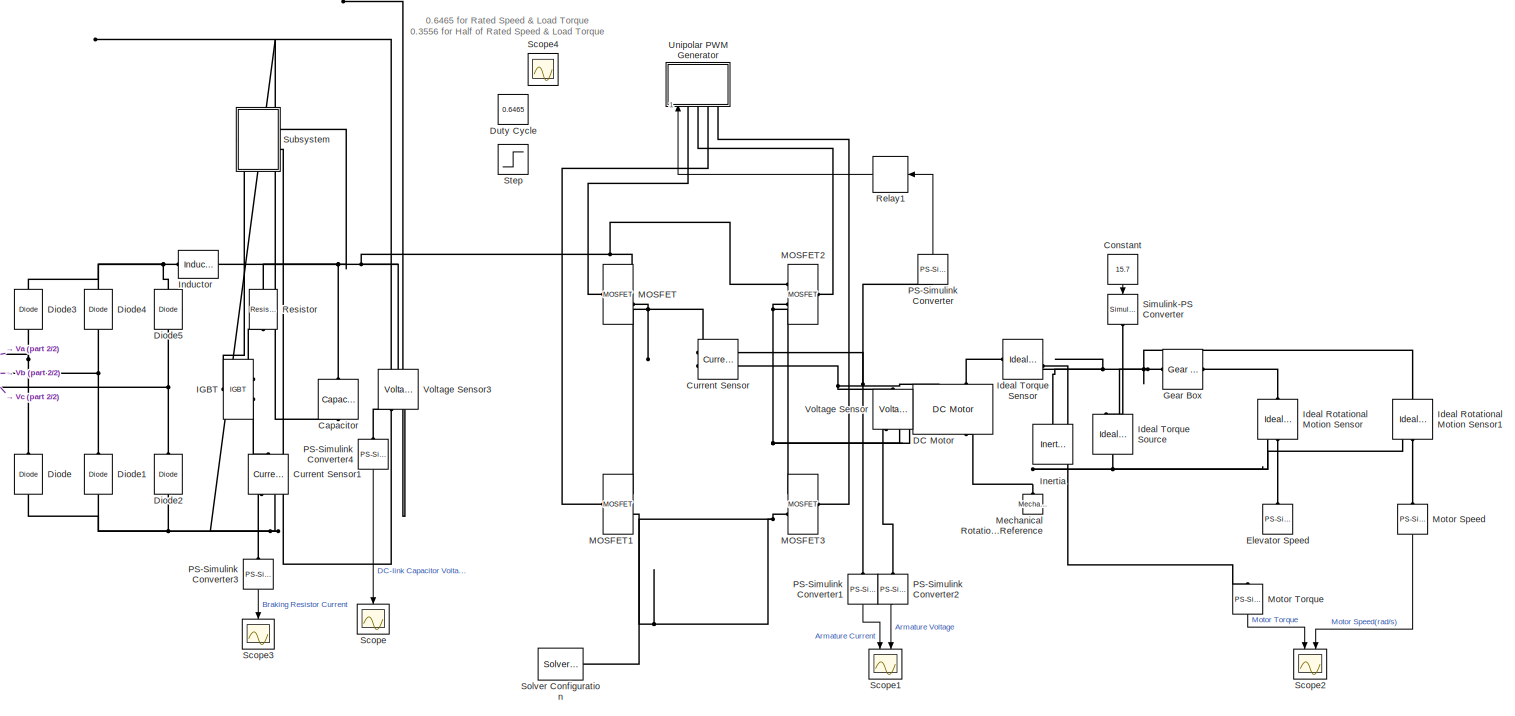
[diagram: root canvas - part 1/2, most of the canvas]
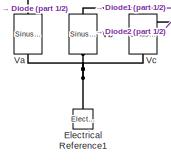
[diagram: root canvas - part 2/2, middle left region]
MODEL slx_2dd2f3dbb460
KIND model
CONFIG AbsTol = auto
CONFIG FixedStep = auto
CONFIG MaxStep = auto
CONFIG MinStep = auto
CONFIG RelTol = 1e-3
CONFIG SampleTimeConstraint = Unconstrained
CONFIG Solver = VariableStepAuto
CONFIG SolverMode = Auto
CONFIG SolverName = VariableStepAuto
CONFIG StartTime = 0.0
CONFIG StopTime = 2
BLOCK [Reference] Capacitor  REF=elec_lib/Passive Devices/Capacitor
  Ports = [0, 0, 0, 0, 0, 1, 1]
  SourceBlock = elec_lib/Passive Devices/Capacitor
  SourceType = Capacitor
BLOCK [Constant] Constant
  Value = 15.7
BLOCK [Reference] Current Sensor  REF=fl_lib/Electrical/Electrical Sensors/Current Sensor
  Ports = [0, 0, 0, 0, 0, 1, 2]
  SourceBlock = fl_lib/Electrical/Electrical Sensors/Current Sensor
  SourceType = Current Sensor
BLOCK [Reference] Current Sensor1  REF=fl_lib/Electrical/Electrical Sensors/Current Sensor
  Ports = [0, 0, 0, 0, 0, 1, 2]
  SourceBlock = fl_lib/Electrical/Electrical Sensors/Current Sensor
  SourceType = Current Sensor
BLOCK [Reference] DC Motor  REF=elec_lib/Actuators & Drivers/Rotational Actuators/DC Motor
  Ports = [0, 0, 0, 0, 0, 2, 2]
  SourceBlock = elec_lib/Actuators & Drivers/Rotational Actuators/DC Motor
  SourceType = DC Motor
BLOCK [Reference] Diode  REF=elec_lib/Semiconductor
Devices/Diode
  Ports = [0, 0, 0, 0, 0, 1, 1]
  SourceBlock = elec_lib/Semiconductor\nDevices/Diode
  SourceType = Diode
BLOCK [Reference] Diode1  REF=elec_lib/Semiconductor
Devices/Diode
  Ports = [0, 0, 0, 0, 0, 1, 1]
  SourceBlock = elec_lib/Semiconductor\nDevices/Diode
  SourceType = Diode
BLOCK [Reference] Diode2  REF=elec_lib/Semiconductor
Devices/Diode
  Ports = [0, 0, 0, 0, 0, 1, 1]
  SourceBlock = elec_lib/Semiconductor\nDevices/Diode
  SourceType = Diode
BLOCK [Reference] Diode3  REF=elec_lib/Semiconductor
Devices/Diode
  Ports = [0, 0, 0, 0, 0, 1, 1]
  SourceBlock = elec_lib/Semiconductor\nDevices/Diode
  SourceType = Diode
BLOCK [Reference] Diode4  REF=elec_lib/Semiconductor
Devices/Diode
  Ports = [0, 0, 0, 0, 0, 1, 1]
  SourceBlock = elec_lib/Semiconductor\nDevices/Diode
  SourceType = Diode
BLOCK [Reference] Diode5  REF=elec_lib/Semiconductor
Devices/Diode
  Ports = [0, 0, 0, 0, 0, 1, 1]
  SourceBlock = elec_lib/Semiconductor\nDevices/Diode
  SourceType = Diode
BLOCK [Constant] Duty Cycle
  Value = 0.6465
BLOCK [Reference] Electrical Reference1  REF=fl_lib/Electrical/Electrical Elements/Electrical Reference
  Ports = [0, 0, 0, 0, 0, 1]
  SourceBlock = fl_lib/Electrical/Electrical Elements/Electrical Reference
  SourceType = Electrical Reference
BLOCK [Reference] Elevator Speed  REF=nesl_utility/PS-Simulink
Converter
  Ports = [0, 1, 0, 0, 0, 1]
  SourceBlock = nesl_utility/PS-Simulink\nConverter
  SourceType = PS-Simulink\nConverter
BLOCK [Reference] Gear Box  REF=fl_lib/Mechanical/Mechanisms/Gear Box
  Ports = [0, 0, 0, 0, 0, 1, 1]
  SourceBlock = fl_lib/Mechanical/Mechanisms/Gear Box
  SourceType = Gear Box
BLOCK [Reference] IGBT  REF=pe_lib/Semiconductors/Fundamental
Components/IGBT
  Ports = [0, 0, 0, 0, 0, 1, 2]
  SourceBlock = pe_lib/Semiconductors/Fundamental\nComponents/IGBT
  SourceType = IGBT
BLOCK [Reference] Ideal Rotational Motion Sensor  REF=fl_lib/Mechanical/Mechanical Sensors/Ideal Rotational
Motion Sensor
  Ports = [0, 0, 0, 0, 0, 1, 3]
  SourceBlock = fl_lib/Mechanical/Mechanical Sensors/Ideal Rotational\nMotion Sensor
  SourceType = Ideal Rotational\nMotion Sensor
BLOCK [Reference] Ideal Rotational Motion Sensor1  REF=fl_lib/Mechanical/Mechanical Sensors/Ideal Rotational
Motion Sensor
  Ports = [0, 0, 0, 0, 0, 1, 3]
  SourceBlock = fl_lib/Mechanical/Mechanical Sensors/Ideal Rotational\nMotion Sensor
  SourceType = Ideal Rotational\nMotion Sensor
BLOCK [Reference] Ideal Torque Sensor  REF=fl_lib/Mechanical/Mechanical Sensors/Ideal Torque Sensor
  Ports = [0, 0, 0, 0, 0, 1, 2]
  SourceBlock = fl_lib/Mechanical/Mechanical Sensors/Ideal Torque Sensor
  SourceType = Ideal Torque Sensor
BLOCK [Reference] Ideal Torque Source  REF=fl_lib/Mechanical/Mechanical Sources/Ideal Torque Source
  Ports = [0, 0, 0, 0, 0, 1, 2]
  SourceBlock = fl_lib/Mechanical/Mechanical Sources/Ideal Torque Source
  SourceType = Ideal Torque Source
BLOCK [Reference] Inductor  REF=elec_lib/Passive Devices/Inductor
  Ports = [0, 0, 0, 0, 0, 1, 1]
  SourceBlock = elec_lib/Passive Devices/Inductor
  SourceType = Inductor
BLOCK [Reference] Inertia  REF=fl_lib/Mechanical/Rotational Elements/Inertia
  Ports = [0, 0, 0, 0, 0, 1]
  SourceBlock = fl_lib/Mechanical/Rotational Elements/Inertia
  SourceType = Inertia
BLOCK [Reference] MOSFET  REF=pe_lib/Semiconductors/Fundamental
Components/MOSFET
  Ports = [0, 0, 0, 0, 0, 1, 2]
  SourceBlock = pe_lib/Semiconductors/Fundamental\nComponents/MOSFET
  SourceType = MOSFET
BLOCK [Reference] MOSFET1  REF=pe_lib/Semiconductors/Fundamental
Components/MOSFET
  Ports = [0, 0, 0, 0, 0, 1, 2]
  SourceBlock = pe_lib/Semiconductors/Fundamental\nComponents/MOSFET
  SourceType = MOSFET
BLOCK [Reference] MOSFET2  REF=pe_lib/Semiconductors/Fundamental
Components/MOSFET
  Ports = [0, 0, 0, 0, 0, 1, 2]
  SourceBlock = pe_lib/Semiconductors/Fundamental\nComponents/MOSFET
  SourceType = MOSFET
BLOCK [Reference] MOSFET3  REF=pe_lib/Semiconductors/Fundamental
Components/MOSFET
  Ports = [0, 0, 0, 0, 0, 1, 2]
  SourceBlock = pe_lib/Semiconductors/Fundamental\nComponents/MOSFET
  SourceType = MOSFET
BLOCK [Reference] Mechanical Rotational Reference  REF=fl_lib/Mechanical/Rotational Elements/Mechanical
Rotational Reference
  Ports = [0, 0, 0, 0, 0, 1]
  SourceBlock = fl_lib/Mechanical/Rotational Elements/Mechanical\nRotational Reference
  SourceType = Mechanical\nRotational Reference
BLOCK [Reference] Motor Speed  REF=nesl_utility/PS-Simulink
Converter
  Ports = [0, 1, 0, 0, 0, 1]
  SourceBlock = nesl_utility/PS-Simulink\nConverter
  SourceType = PS-Simulink\nConverter
BLOCK [Reference] Motor Torque  REF=nesl_utility/PS-Simulink
Converter
  Ports = [0, 1, 0, 0, 0, 1]
  SourceBlock = nesl_utility/PS-Simulink\nConverter
  SourceType = PS-Simulink\nConverter
BLOCK [Reference] PS-Simulink Converter  REF=nesl_utility/PS-Simulink
Converter
  Ports = [0, 1, 0, 0, 0, 1]
  SourceBlock = nesl_utility/PS-Simulink\nConverter
  SourceType = PS-Simulink\nConverter
BLOCK [Reference] PS-Simulink Converter1  REF=nesl_utility/PS-Simulink
Converter
  Ports = [0, 1, 0, 0, 0, 1]
  SourceBlock = nesl_utility/PS-Simulink\nConverter
  SourceType = PS-Simulink\nConverter
BLOCK [Reference] PS-Simulink Converter2  REF=nesl_utility/PS-Simulink
Converter
  Ports = [0, 1, 0, 0, 0, 1]
  SourceBlock = nesl_utility/PS-Simulink\nConverter
  SourceType = PS-Simulink\nConverter
BLOCK [Reference] PS-Simulink Converter3  REF=nesl_utility/PS-Simulink
Converter
  Ports = [0, 1, 0, 0, 0, 1]
  SourceBlock = nesl_utility/PS-Simulink\nConverter
  SourceType = PS-Simulink\nConverter
BLOCK [Reference] PS-Simulink Converter4  REF=nesl_utility/PS-Simulink
Converter
  Ports = [0, 1, 0, 0, 0, 1]
  SourceBlock = nesl_utility/PS-Simulink\nConverter
  SourceType = PS-Simulink\nConverter
BLOCK [Relay] Relay1
  OffOutputValue = 1
  OffSwitchValue = 19*0.99
  OnOutputValue = 0
  OnSwitchValue = 19*1.01
BLOCK [Reference] Resistor  REF=elec_lib/Passive Devices/Resistor
  Ports = [0, 0, 0, 0, 0, 1, 1]
  SourceBlock = elec_lib/Passive Devices/Resistor
  SourceType = Resistor
BLOCK [Scope] Scope
  Ports = [1]
  ScopeSpecificationString = Simulink.scopes.TimeScopeBlockCfg('CurrentConfiguration', extmgr.ConfigurationSet(extmgr.Configuration('Core','General UI',true,'FigureColor',[1 1 1]),extmgr.Configuration('Core','Source UI',true),extmgr.Configuration('Sources','WiredSimulink',true,'DataLoggingVariableName','ScopeData1'),extmgr.Configuration('Visuals','Time Domain',true,'SerializedDisplays',{struct('MinYLimReal','-41.72514','MaxYL...<+1543ch>
BLOCK [Scope] Scope1
  NumInputPorts = 2
  Ports = [2]
  ScopeSpecificationString = Simulink.scopes.TimeScopeBlockCfg('CurrentConfiguration', extmgr.ConfigurationSet(extmgr.Configuration('Core','General UI',true,'FigureColor',[1 1 1]),extmgr.Configuration('Core','Source UI',true),extmgr.Configuration('Sources','WiredSimulink',true),extmgr.Configuration('Visuals','Time Domain',true,'SerializedDisplays',{struct('MinYLimReal','-2.27749','MaxYLimReal','22.17665','YLabelReal','','MinY...<+2658ch>
BLOCK [Scope] Scope2
  NumInputPorts = 2
  Ports = [2]
  ScopeSpecificationString = Simulink.scopes.TimeScopeBlockCfg('CurrentConfiguration', extmgr.ConfigurationSet(extmgr.Configuration('Core','General UI',true,'FigureColor',[1 1 1]),extmgr.Configuration('Core','Source UI',true),extmgr.Configuration('Sources','WiredSimulink',true,'DataLoggingVariableName','ScopeData2'),extmgr.Configuration('Visuals','Time Domain',true,'SerializedDisplays',{struct('MinYLimReal','5.84419','MaxYLim...<+2641ch>
BLOCK [Scope] Scope3
  Ports = [1]
  ScopeSpecificationString = Simulink.scopes.TimeScopeBlockCfg('CurrentConfiguration', extmgr.ConfigurationSet(extmgr.Configuration('Core','General UI',true,'FigureColor',[1 1 1]),extmgr.Configuration('Core','Source UI',true),extmgr.Configuration('Sources','WiredSimulink',true,'DataLoggingVariableName','ScopeData2'),extmgr.Configuration('Visuals','Time Domain',true,'SerializedDisplays',{struct('MinYLimReal','-5.93721','MaxYLi...<+1536ch>
BLOCK [Scope] Scope4
  IOType = viewer
  Ports = []
  ScopeSpecificationString = Simulink.scopes.TimeScopeBlockCfg('CurrentConfiguration', extmgr.ConfigurationSet(extmgr.Configuration('Core','General UI',true),extmgr.Configuration('Core','Source UI',true),extmgr.Configuration('Sources','WiredSimulink',true,'DataLoggingVariableName','ScopeData1'),extmgr.Configuration('Visuals','Time Domain',true,'SerializedDisplays',{struct('MinYLimReal','-1.00000','MaxYLimReal','1.00000','YLab...<+1359ch>
BLOCK [Reference] Simulink-PS Converter  REF=nesl_utility/Simulink-PS
Converter
  Ports = [1, 0, 0, 0, 0, 0, 1]
  SourceBlock = nesl_utility/Simulink-PS\nConverter
  SourceType = Simulink-PS\nConverter
BLOCK [Reference] Solver Configuration  REF=nesl_utility/Solver
Configuration
  Ports = [0, 0, 0, 0, 0, 0, 1]
  SourceBlock = nesl_utility/Solver\nConfiguration
  SourceType = Solver\nConfiguration
BLOCK [Step] Step
  After = 0.3556
  Before = 0.6465
  SampleTime = 0
  Time = 2
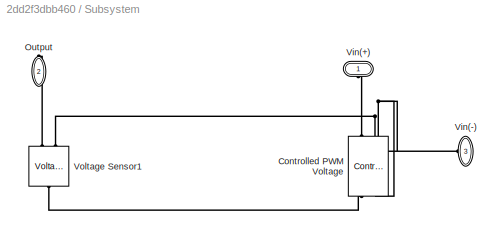
BLOCK [SubSystem] Subsystem
  Ports = [0, 0, 0, 0, 0, 2, 1]
  RequestExecContextInheritance = off
  Variant = off
BLOCK [Reference] Subsystem/Controlled PWM Voltage  REF=elec_lib/Actuators & Drivers/Drivers/Controlled PWM
Voltage
  Ports = [0, 0, 0, 0, 0, 2, 2]
  SourceBlock = elec_lib/Actuators & Drivers/Drivers/Controlled PWM\nVoltage
  SourceType = Controlled PWM\nVoltage
BLOCK [PMIOPort] Subsystem/Output
  Port = 2
  Side = Right
BLOCK [PMIOPort] Subsystem/Vin(+)
  Port = 1
  Side = Left
BLOCK [PMIOPort] Subsystem/Vin(-)
  Port = 3
  Side = Left
BLOCK [Reference] Subsystem/Voltage Sensor1  REF=fl_lib/Electrical/Electrical Sensors/Voltage Sensor
  Ports = [0, 0, 0, 0, 0, 1, 2]
  SourceBlock = fl_lib/Electrical/Electrical Sensors/Voltage Sensor
  SourceType = Voltage Sensor
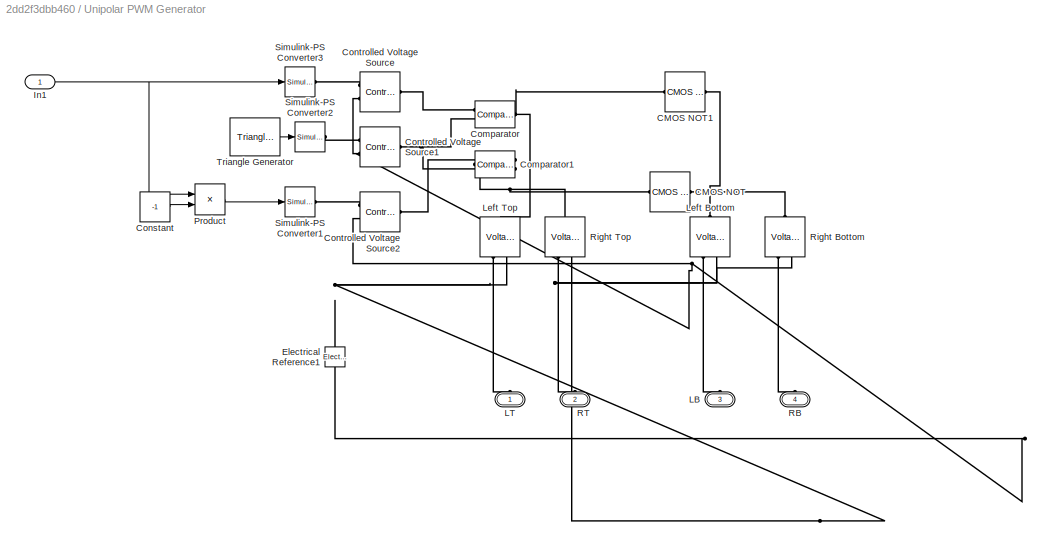
BLOCK [SubSystem] Unipolar PWM Generator
  Ports = [1, 0, 0, 0, 0, 4]
  RequestExecContextInheritance = off
  Variant = off
BLOCK [Reference] Unipolar PWM Generator/CMOS NOT  REF=elec_lib/Integrated Circuits/Logic/CMOS NOT
  Ports = [0, 0, 0, 0, 0, 1, 1]
  SourceBlock = elec_lib/Integrated Circuits/Logic/CMOS NOT
  SourceType = CMOS NOT
BLOCK [Reference] Unipolar PWM Generator/CMOS NOT1  REF=elec_lib/Integrated Circuits/Logic/CMOS NOT
  Ports = [0, 0, 0, 0, 0, 1, 1]
  SourceBlock = elec_lib/Integrated Circuits/Logic/CMOS NOT
  SourceType = CMOS NOT
BLOCK [Reference] Unipolar PWM Generator/Comparator  REF=elec_lib/Integrated Circuits/Comparator
  Ports = [0, 0, 0, 0, 0, 2, 1]
  SourceBlock = elec_lib/Integrated Circuits/Comparator
  SourceType = Comparator
BLOCK [Reference] Unipolar PWM Generator/Comparator1  REF=elec_lib/Integrated Circuits/Comparator
  Ports = [0, 0, 0, 0, 0, 2, 1]
  SourceBlock = elec_lib/Integrated Circuits/Comparator
  SourceType = Comparator
BLOCK [Constant] Unipolar PWM Generator/Constant
  Value = -1
BLOCK [Reference] Unipolar PWM Generator/Controlled Voltage Source  REF=fl_lib/Electrical/Electrical Sources/Controlled Voltage
Source
  Ports = [0, 0, 0, 0, 0, 1, 2]
  SourceBlock = fl_lib/Electrical/Electrical Sources/Controlled Voltage\nSource
  SourceType = Controlled Voltage\nSource
BLOCK [Reference] Unipolar PWM Generator/Controlled Voltage Source1  REF=fl_lib/Electrical/Electrical Sources/Controlled Voltage
Source
  Ports = [0, 0, 0, 0, 0, 1, 2]
  SourceBlock = fl_lib/Electrical/Electrical Sources/Controlled Voltage\nSource
  SourceType = Controlled Voltage\nSource
BLOCK [Reference] Unipolar PWM Generator/Controlled Voltage Source2  REF=fl_lib/Electrical/Electrical Sources/Controlled Voltage
Source
  Ports = [0, 0, 0, 0, 0, 1, 2]
  SourceBlock = fl_lib/Electrical/Electrical Sources/Controlled Voltage\nSource
  SourceType = Controlled Voltage\nSource
BLOCK [Reference] Unipolar PWM Generator/Electrical Reference1  REF=fl_lib/Electrical/Electrical Elements/Electrical Reference
  Ports = [0, 0, 0, 0, 0, 1]
  SourceBlock = fl_lib/Electrical/Electrical Elements/Electrical Reference
  SourceType = Electrical Reference
BLOCK [Inport] Unipolar PWM Generator/In1
  IconDisplay = Port number
BLOCK [PMIOPort] Unipolar PWM Generator/LB
  Port = 3
  Side = Left
BLOCK [PMIOPort] Unipolar PWM Generator/LT
  Port = 1
  Side = Left
BLOCK [Reference] Unipolar PWM Generator/Left Bottom  REF=fl_lib/Electrical/Electrical Sensors/Voltage Sensor
  Ports = [0, 0, 0, 0, 0, 1, 2]
  SourceBlock = fl_lib/Electrical/Electrical Sensors/Voltage Sensor
  SourceType = Voltage Sensor
BLOCK [Reference] Unipolar PWM Generator/Left Top  REF=fl_lib/Electrical/Electrical Sensors/Voltage Sensor
  Ports = [0, 0, 0, 0, 0, 1, 2]
  SourceBlock = fl_lib/Electrical/Electrical Sensors/Voltage Sensor
  SourceType = Voltage Sensor
BLOCK [Product] Unipolar PWM Generator/Product
  InputSameDT = off
  OutDataTypeStr = Inherit: Inherit via internal rule
  Ports = [2, 1]
  RndMeth = Floor
  SaturateOnIntegerOverflow = off
BLOCK [PMIOPort] Unipolar PWM Generator/RB
  Port = 4
  Side = Left
BLOCK [PMIOPort] Unipolar PWM Generator/RT
  Port = 2
  Side = Left
BLOCK [Reference] Unipolar PWM Generator/Right Bottom  REF=fl_lib/Electrical/Electrical Sensors/Voltage Sensor
  Ports = [0, 0, 0, 0, 0, 1, 2]
  SourceBlock = fl_lib/Electrical/Electrical Sensors/Voltage Sensor
  SourceType = Voltage Sensor
BLOCK [Reference] Unipolar PWM Generator/Right Top  REF=fl_lib/Electrical/Electrical Sensors/Voltage Sensor
  Ports = [0, 0, 0, 0, 0, 1, 2]
  SourceBlock = fl_lib/Electrical/Electrical Sensors/Voltage Sensor
  SourceType = Voltage Sensor
BLOCK [Reference] Unipolar PWM Generator/Simulink-PS Converter1  REF=nesl_utility/Simulink-PS
Converter
  Ports = [1, 0, 0, 0, 0, 0, 1]
  SourceBlock = nesl_utility/Simulink-PS\nConverter
  SourceType = Simulink-PS\nConverter
BLOCK [Reference] Unipolar PWM Generator/Simulink-PS Converter2  REF=nesl_utility/Simulink-PS
Converter
  Ports = [1, 0, 0, 0, 0, 0, 1]
  SourceBlock = nesl_utility/Simulink-PS\nConverter
  SourceType = Simulink-PS\nConverter
BLOCK [Reference] Unipolar PWM Generator/Simulink-PS Converter3  REF=nesl_utility/Simulink-PS
Converter
  Ports = [1, 0, 0, 0, 0, 0, 1]
  SourceBlock = nesl_utility/Simulink-PS\nConverter
  SourceType = Simulink-PS\nConverter
BLOCK [Reference] Unipolar PWM Generator/Triangle Generator  REF=powerlib_meascontrol/Pulse & Signal
Generators/Triangle
Generator
  Ports = [0, 1]
  SourceBlock = powerlib_meascontrol/Pulse & Signal\nGenerators/Triangle\nGenerator
  SourceType = Triangle Generator
BLOCK [Reference] Va  REF=elec_lib/Additional
Components/SPICE-Compatible
Components/Sources/Sinusoidal Voltage
Source
  Ports = [0, 0, 0, 0, 0, 1, 1]
  SourceBlock = elec_lib/Additional\nComponents/SPICE-Compatible\nComponents/Sources/Sinusoidal Voltage\nSource
  SourceType = Sinusoidal Voltage\nSource
BLOCK [Reference] Vb  REF=elec_lib/Additional
Components/SPICE-Compatible
Components/Sources/Sinusoidal Voltage
Source
  Ports = [0, 0, 0, 0, 0, 1, 1]
  SourceBlock = elec_lib/Additional\nComponents/SPICE-Compatible\nComponents/Sources/Sinusoidal Voltage\nSource
  SourceType = Sinusoidal Voltage\nSource
BLOCK [Reference] Vc  REF=elec_lib/Additional
Components/SPICE-Compatible
Components/Sources/Sinusoidal Voltage
Source
  Ports = [0, 0, 0, 0, 0, 1, 1]
  SourceBlock = elec_lib/Additional\nComponents/SPICE-Compatible\nComponents/Sources/Sinusoidal Voltage\nSource
  SourceType = Sinusoidal Voltage\nSource
BLOCK [Reference] Voltage Sensor  REF=fl_lib/Electrical/Electrical Sensors/Voltage Sensor
  Ports = [0, 0, 0, 0, 0, 1, 2]
  SourceBlock = fl_lib/Electrical/Electrical Sensors/Voltage Sensor
  SourceType = Voltage Sensor
BLOCK [Reference] Voltage Sensor3  REF=fl_lib/Electrical/Electrical Sensors/Voltage Sensor
  Ports = [0, 0, 0, 0, 0, 1, 2]
  SourceBlock = fl_lib/Electrical/Electrical Sensors/Voltage Sensor
  SourceType = Voltage Sensor
ANNOTATION (root): 0.6465 for Rated Speed & Load Torque 0.3556 for Half of Rated Speed & Load Torque
LINE Constant:1 -> Simulink-PS Converter:1
LINE Motor Speed:1 -> Scope2:2
LINE Motor Torque:1 -> Scope2:1
LINE PS-Simulink Converter1:1 -> Scope1:1
LINE PS-Simulink Converter2:1 -> Scope1:2
LINE PS-Simulink Converter3:1 -> Scope3:1
LINE PS-Simulink Converter4:1 -> Scope:1
LINE PS-Simulink Converter:1 -> Relay1:1
LINE Relay1:1 -> Unipolar PWM Generator:1
LINE Unipolar PWM Generator/Constant:1 -> Unipolar PWM Generator/Product:2
NET Unipolar PWM Generator/In1:1 -> Unipolar PWM Generator/Product:1, Unipolar PWM Generator/Simulink-PS Converter3:1
LINE Unipolar PWM Generator/Product:1 -> Unipolar PWM Generator/Simulink-PS Converter1:1
LINE Unipolar PWM Generator/Triangle Generator:1 -> Unipolar PWM Generator/Simulink-PS Converter2:1
PNET net1: Capacitor:LConn1 -- Inductor:RConn1 -- MOSFET2:RConn1 -- MOSFET:RConn1 -- Resistor:LConn1 -- Subsystem:LConn1 -- Voltage Sensor3:LConn1
PNET net2: Capacitor:RConn1 -- Current Sensor1:RConn2 -- Diode1:LConn1 -- Diode2:LConn1 -- Diode:LConn1 -- MOSFET1:RConn2 -- MOSFET3:RConn2 -- Solver Configuration:RConn1 -- Subsystem:LConn2 -- Voltage Sensor3:RConn2
PLINE Current Sensor1:LConn1 -- IGBT:RConn2
PLINE Current Sensor1:RConn1 -- PS-Simulink Converter3:LConn1
PNET net3: Current Sensor:LConn1 -- MOSFET1:RConn1 -- MOSFET:RConn2
PNET net4: Current Sensor:RConn1 -- PS-Simulink Converter1:LConn1 -- PS-Simulink Converter:LConn1
PNET net5: Current Sensor:RConn2 -- DC Motor:LConn1 -- Voltage Sensor:LConn1
PLINE DC Motor:LConn2 -- Ideal Torque Sensor:LConn1
PNET net6: DC Motor:RConn1 -- MOSFET2:RConn2 -- MOSFET3:RConn1 -- Voltage Sensor:RConn2
PNET net7: DC Motor:RConn2 -- Ideal Rotational Motion Sensor1:RConn1 -- Ideal Rotational Motion Sensor:RConn1 -- Ideal Torque Source:LConn1 -- Mechanical Rotational Reference:LConn1
PNET net8: Diode1:RConn1 -- Diode4:LConn1 -- Vb:LConn1
PNET net9: Diode2:RConn1 -- Diode5:LConn1 -- Vc:LConn1
PNET net10: Diode3:LConn1 -- Diode:RConn1 -- Va:LConn1
PNET net11: Diode3:RConn1 -- Diode4:RConn1 -- Diode5:RConn1 -- Inductor:LConn1
PNET net12: Electrical Reference1:LConn1 -- Va:RConn1 -- Vb:RConn1 -- Vc:RConn1
PLINE Elevator Speed:LConn1 -- Ideal Rotational Motion Sensor:RConn2
PNET net13: Gear Box:LConn1 -- Ideal Rotational Motion Sensor1:LConn1 -- Ideal Torque Sensor:RConn1 -- Ideal Torque Source:RConn2 -- Inertia:LConn1
PLINE Gear Box:RConn1 -- Ideal Rotational Motion Sensor:LConn1
PLINE IGBT:LConn1 -- Subsystem:RConn1
PLINE IGBT:RConn1 -- Resistor:RConn1
PLINE Ideal Rotational Motion Sensor1:RConn2 -- Motor Speed:LConn1
PLINE Ideal Torque Sensor:RConn2 -- Motor Torque:LConn1
PLINE Ideal Torque Source:RConn1 -- Simulink-PS Converter:RConn1
PLINE MOSFET1:LConn1 -- Unipolar PWM Generator:LConn3
PLINE MOSFET2:LConn1 -- Unipolar PWM Generator:LConn2
PLINE MOSFET3:LConn1 -- Unipolar PWM Generator:LConn4
PLINE MOSFET:LConn1 -- Unipolar PWM Generator:LConn1
PLINE PS-Simulink Converter2:LConn1 -- Voltage Sensor:RConn1
PLINE PS-Simulink Converter4:LConn1 -- Voltage Sensor3:RConn1
PLINE Subsystem/Controlled PWM Voltage:LConn1 -- Subsystem/Vin(+):RConn1
PNET net14: Subsystem/Controlled PWM Voltage:LConn2 -- Subsystem/Controlled PWM Voltage:RConn2 -- Subsystem/Vin(-):RConn1 -- Subsystem/Voltage Sensor1:RConn2
PLINE Subsystem/Controlled PWM Voltage:RConn1 -- Subsystem/Voltage Sensor1:LConn1
PLINE Subsystem/Output:RConn1 -- Subsystem/Voltage Sensor1:RConn1
PNET net15: Unipolar PWM Generator/CMOS NOT1:LConn1 -- Unipolar PWM Generator/Comparator:RConn1 -- Unipolar PWM Generator/Left Top:LConn1
PLINE Unipolar PWM Generator/CMOS NOT1:RConn1 -- Unipolar PWM Generator/Left Bottom:LConn1
PNET net16: Unipolar PWM Generator/CMOS NOT:LConn1 -- Unipolar PWM Generator/Comparator1:RConn1 -- Unipolar PWM Generator/Right Top:LConn1
PLINE Unipolar PWM Generator/CMOS NOT:RConn1 -- Unipolar PWM Generator/Right Bottom:LConn1
PLINE Unipolar PWM Generator/Comparator1:LConn1 -- Unipolar PWM Generator/Controlled Voltage Source2:LConn1
PNET net17: Unipolar PWM Generator/Comparator1:LConn2 -- Unipolar PWM Generator/Comparator:LConn2 -- Unipolar PWM Generator/Controlled Voltage Source1:LConn1
PLINE Unipolar PWM Generator/Comparator:LConn1 -- Unipolar PWM Generator/Controlled Voltage Source:LConn1
PLINE Unipolar PWM Generator/Controlled Voltage Source1:RConn1 -- Unipolar PWM Generator/Simulink-PS Converter2:RConn1
PNET net18: Unipolar PWM Generator/Controlled Voltage Source1:RConn2 -- Unipolar PWM Generator/Controlled Voltage Source2:RConn2 -- Unipolar PWM Generator/Controlled Voltage Source:RConn2 -- Unipolar PWM Generator/Electrical Reference1:LConn1 -- Unipolar PWM Generator/Left Bottom:RConn2 -- Unipolar PWM Generator/Left Top:RConn2 -- Unipolar PWM Generator/Right Bottom:RConn2 -- Unipolar PWM Generator/Right Top:RConn2
PLINE Unipolar PWM Generator/Controlled Voltage Source2:RConn1 -- Unipolar PWM Generator/Simulink-PS Converter1:RConn1
PLINE Unipolar PWM Generator/Controlled Voltage Source:RConn1 -- Unipolar PWM Generator/Simulink-PS Converter3:RConn1
PLINE Unipolar PWM Generator/LB:RConn1 -- Unipolar PWM Generator/Left Bottom:RConn1
PLINE Unipolar PWM Generator/LT:RConn1 -- Unipolar PWM Generator/Left Top:RConn1
PLINE Unipolar PWM Generator/RB:RConn1 -- Unipolar PWM Generator/Right Bottom:RConn1
PLINE Unipolar PWM Generator/RT:RConn1 -- Unipolar PWM Generator/Right Top:RConn1
note: NET lines group one-source signal fan-out (src -> all destinations, sorted); 1:1 wires keep LINE; PNET lines group multi-terminal physical nets as a canonical sorted terminal list (undirected conserving connections); 2-terminal nets keep the pairwise PLINE form
